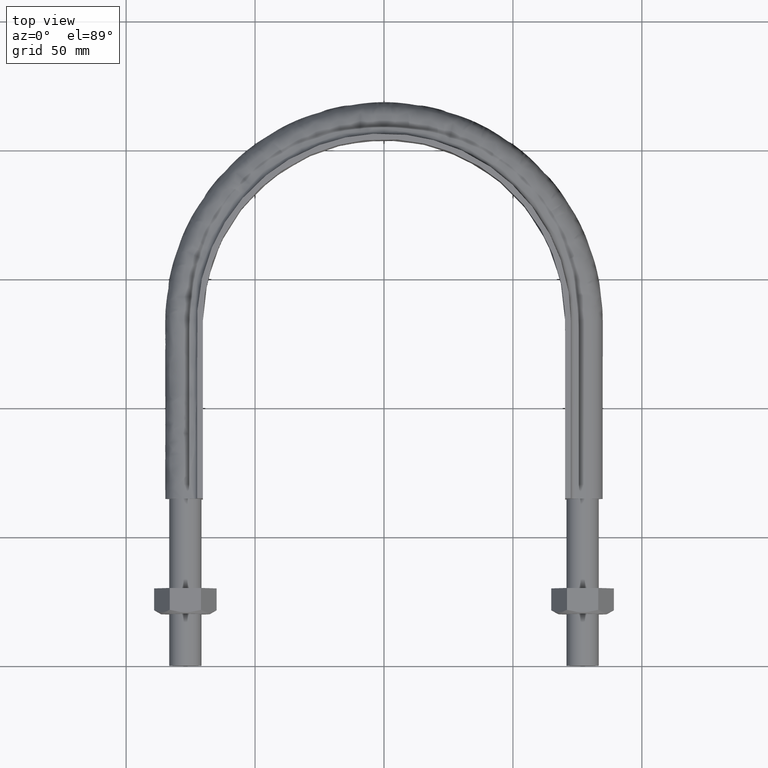
[diagram: clean part render]
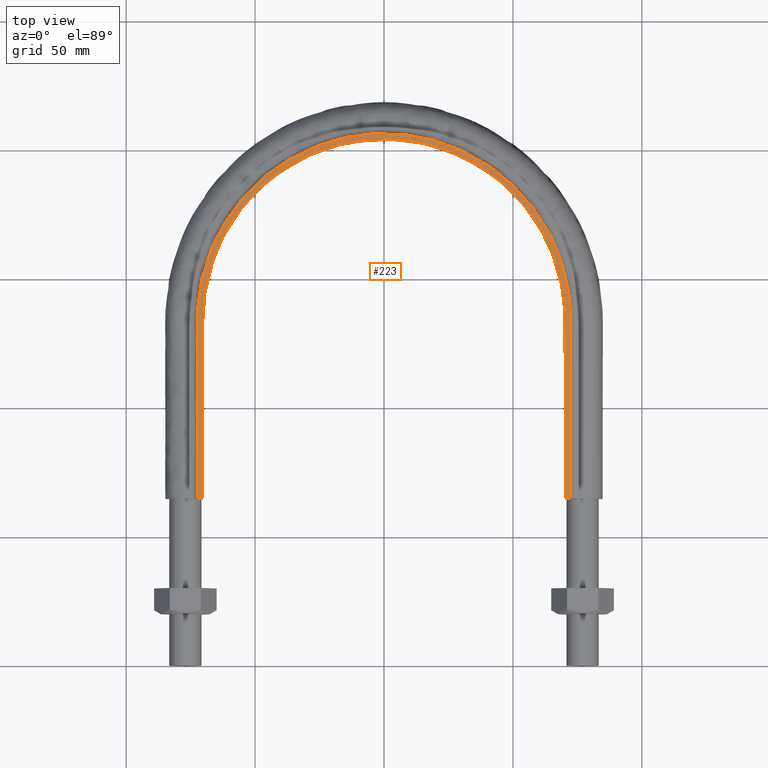
[diagram: same view with one face highlighted and labeled with its STEP entity id]
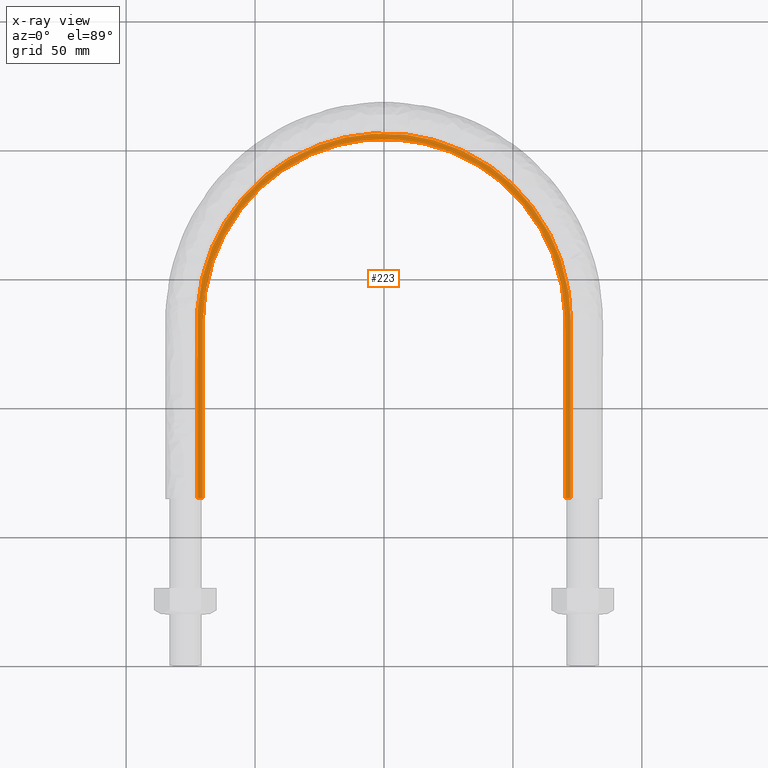
[diagram: x-ray of the same camera — body ghosted, the highlighted face saturated]
A machine part, top view. The second image highlights one B-rep face of the part: STEP entity #223.
The next image is the same camera in x-ray: the body ghosted, the highlighted face saturated — about 0% of this face is hidden behind the body in this view.
In plain terms, the highlighted planar face has unit normal (0, 0, 1).
Its self-contained STEP definition (entity closure, byte-faithful):
#223 = ADVANCED_FACE( '', ( #268 ), #269, .T. );
#268 = FACE_OUTER_BOUND( '', #365, .T. );
#269 = PLANE( '', #366 );
#365 = EDGE_LOOP( '', ( #1340, #1341, #1342, #1343 ) );
#366 = AXIS2_PLACEMENT_3D( '', #1344, #1345, #1346 );
#1340 = ORIENTED_EDGE( '', *, *, #1549, .T. );
#1341 = ORIENTED_EDGE( '', *, *, #1559, .T. );
#1342 = ORIENTED_EDGE( '', *, *, #1558, .T. );
#1343 = ORIENTED_EDGE( '', *, *, #1560, .F. );
#1344 = CARTESIAN_POINT( '', ( 100.000000000000, 264.710000000000, 15.0000000000000 ) );
#1345 = DIRECTION( '', ( 0.000000000000000, 0.000000000000000, 1.00000000000000 ) );
#1346 = DIRECTION( '', ( 1.22460635382238E-016, 1.00000000000000, 0.000000000000000 ) );
#1549 = EDGE_CURVE( '', #1618, #1616, #1619, .T. );
#1558 = EDGE_CURVE( '', #1630, #1632, #1634, .T. );
#1559 = EDGE_CURVE( '', #1616, #1630, #1635, .T. );
#1560 = EDGE_CURVE( '', #1618, #1632, #1636, .F. );
#1616 = VERTEX_POINT( '', #1742 );
#1618 = VERTEX_POINT( '', #1745 );
#1619 = LINE( '', #1746, #1747 );
#1630 = VERTEX_POINT( '', #1830 );
#1632 = VERTEX_POINT( '', #1833 );
#1634 = LINE( '', #1865, #1866 );
#1635 = B_SPLINE_CURVE_WITH_KNOTS( '', 3, ( #1867, #1868, #1869, #1870, #1871, #1872, #1873, #1874, #1875, #1876, #1877, #1878, #1879, #1880, #1881, #1882 ), .UNSPECIFIED., .F., .F., ( 4, 3, 1, 1, 1, 1, 1, 1, 3, 4 ), ( -9.00000000000000, -8.00000000000000, -7.00000000000000, -6.00000000000000, -5.00000000000000, -4.00000000000000, -3.00000000000000, -2.00000000000000, -1.00000000000000, 0.000000000000000 ), .UNSPECIFIED. );
#1636 = B_SPLINE_CURVE_WITH_KNOTS( '', 3, ( #1883, #1884, #1885, #1886, #1887, #1888, #1889, #1890, #1891, #1892, #1893, #1894, #1895, #1896, #1897, #1898 ), .UNSPECIFIED., .F., .F., ( 4, 3, 1, 1, 1, 1, 1, 1, 3, 4 ), ( 0.000000000000000, 1.00000000000000, 2.00000000000000, 3.00000000000000, 4.00000000000000, 5.00000000000000, 6.00000000000000, 7.00000000000000, 8.00000000000000, 9.00000000000000 ), .UNSPECIFIED. );
#1742 = CARTESIAN_POINT( '', ( -70.2500000000000, 64.7100000000000, 15.0000000000000 ) );
#1745 = CARTESIAN_POINT( '', ( -72.4500000000000, 64.7100000000000, 15.0000000000000 ) );
#1746 = CARTESIAN_POINT( '', ( -100.000000000000, 64.7100000000000, 15.0000000000000 ) );
#1747 = VECTOR( '', #2168, 1000.00000000000 );
#1830 = CARTESIAN_POINT( '', ( 70.2500000000000, 64.7100000000000, 15.0000000000000 ) );
#1833 = CARTESIAN_POINT( '', ( 72.4500000000000, 64.7100000000000, 15.0000000000000 ) );
#1865 = CARTESIAN_POINT( '', ( -100.000000000000, 64.7100000000000, 15.0000000000000 ) );
#1866 = VECTOR( '', #2172, 1000.00000000000 );
#1867 = CARTESIAN_POINT( '', ( -70.2500000000000, 64.7100000000000, 15.0000000000000 ) );
#1868 = CARTESIAN_POINT( '', ( -70.2500000000000, 87.7266666666667, 15.0000000000000 ) );
#1869 = CARTESIAN_POINT( '', ( -70.2500000000000, 110.743333333333, 15.0000000000000 ) );
#1870 = CARTESIAN_POINT( '', ( -70.2500000000000, 133.760000000000, 15.0000000000000 ) );
#1871 = CARTESIAN_POINT( '', ( -70.2500000000000, 144.249418134732, 15.0000000000000 ) );
#1872 = CARTESIAN_POINT( '', ( -65.4537147955432, 165.288971927909, 15.0000000000000 ) );
#1873 = CARTESIAN_POINT( '', ( -45.2953760364684, 190.556467088273, 15.0000000000000 ) );
#1874 = CARTESIAN_POINT( '', ( -16.1657325420394, 204.587129579273, 15.0000000000000 ) );
#1875 = CARTESIAN_POINT( '', ( 16.1657325420395, 204.587129579273, 15.0000000000000 ) );
#1876 = CARTESIAN_POINT( '', ( 45.2953760364684, 190.556467088273, 15.0000000000000 ) );
#1877 = CARTESIAN_POINT( '', ( 65.4537147955432, 165.288971927909, 15.0000000000000 ) );
#1878 = CARTESIAN_POINT( '', ( 70.2500000000000, 144.249418134732, 15.0000000000000 ) );
#1879 = CARTESIAN_POINT( '', ( 70.2500000000000, 133.760000000000, 15.0000000000000 ) );
#1880 = CARTESIAN_POINT( '', ( 70.2500000000000, 110.743333333333, 15.0000000000000 ) );
#1881 = CARTESIAN_POINT( '', ( 70.2500000000000, 87.7266666666667, 15.0000000000000 ) );
#1882 = CARTESIAN_POINT( '', ( 70.2500000000000, 64.7100000000000, 15.0000000000000 ) );
#1883 = CARTESIAN_POINT( '', ( 72.4500000000000, 64.7100000000000, 15.0000000000000 ) );
#1884 = CARTESIAN_POINT( '', ( 72.4500000000000, 87.7266666666667, 15.0000000000000 ) );
#1885 = CARTESIAN_POINT( '', ( 72.4500000000000, 110.743333333333, 15.0000000000000 ) );
#1886 = CARTESIAN_POINT( '', ( 72.4500000000000, 133.760000000000, 15.0000000000000 ) );
#1887 = CARTESIAN_POINT( '', ( 72.4500000000000, 144.584175230504, 15.0000000000000 ) );
#1888 = CARTESIAN_POINT( '', ( 67.5035108460798, 166.273453800089, 15.0000000000000 ) );
#1889 = CARTESIAN_POINT( '', ( 46.7138789159023, 192.335910248336, 15.0000000000000 ) );
#1890 = CARTESIAN_POINT( '', ( 16.6719903583027, 206.805050635421, 15.0000000000000 ) );
#1891 = CARTESIAN_POINT( '', ( -16.6719903583026, 206.805050635421, 15.0000000000000 ) );
#1892 = CARTESIAN_POINT( '', ( -46.7138789159022, 192.335910248336, 15.0000000000000 ) );
#1893 = CARTESIAN_POINT( '', ( -67.5035108460798, 166.273453800089, 15.0000000000000 ) );
#1894 = CARTESIAN_POINT( '', ( -72.4500000000000, 144.584175230504, 15.0000000000000 ) );
#1895 = CARTESIAN_POINT( '', ( -72.4500000000000, 133.760000000000, 15.0000000000000 ) );
#1896 = CARTESIAN_POINT( '', ( -72.4500000000000, 110.743333333333, 15.0000000000000 ) );
#1897 = CARTESIAN_POINT( '', ( -72.4500000000000, 87.7266666666667, 15.0000000000000 ) );
#1898 = CARTESIAN_POINT( '', ( -72.4500000000000, 64.7100000000000, 15.0000000000000 ) );
#2168 = DIRECTION( '', ( 1.00000000000000, -1.22460635382238E-016, 0.000000000000000 ) );
#2172 = DIRECTION( '', ( 1.00000000000000, -1.22460635382238E-016, 0.000000000000000 ) );